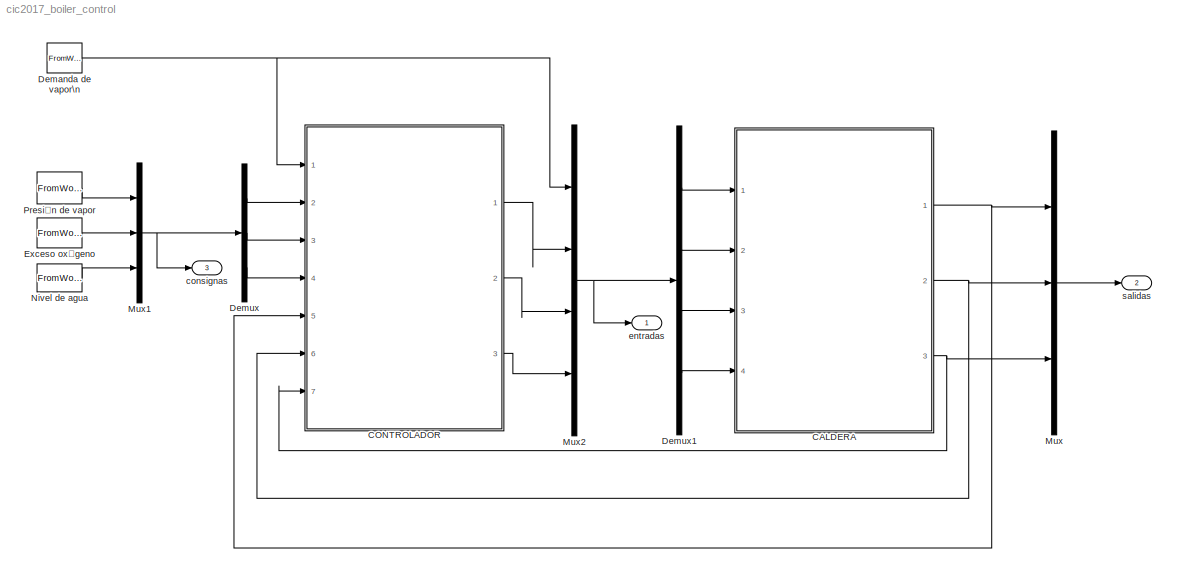
MODEL cic2017_boiler_control
KIND model
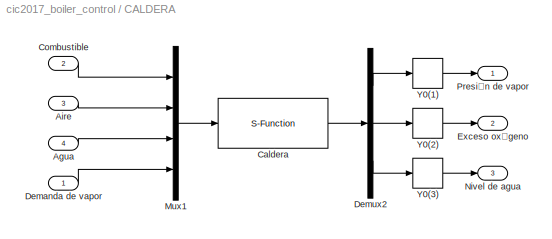
BLOCK [SubSystem] CALDERA
  Ports = [4, 3]
  RequestExecContextInheritance = off
  SID = 1
BLOCK [Inport] CALDERA/Agua
  IconDisplay = Port number
  Port = 4
  SID = 4
BLOCK [Inport] CALDERA/Aire
  IconDisplay = Port number
  Port = 3
  SID = 3
BLOCK [S-Function] CALDERA/Caldera
  EnableBusSupport = off
  FunctionName = cic2017_boiler
  Parameters = Y0,[U0 D0]
  Ports = [1, 1]
  SID = 27
BLOCK [Inport] CALDERA/Combustible
  IconDisplay = Port number
  Port = 2
  SID = 2
BLOCK [Inport] CALDERA/Demanda de vapor
  IconDisplay = Port number
  SID = 5
BLOCK [Demux] CALDERA/Demux2
  DisplayOption = bar
  Outputs = 3
  Ports = [1, 3]
  SID = 9
BLOCK [Outport] CALDERA/Exceso oxígeno
  IconDisplay = Port number
  Port = 2
  SID = 45
BLOCK [Mux] CALDERA/Mux1
  DisplayOption = bar
  Ports = [4, 1]
  SID = 15
BLOCK [Outport] CALDERA/Nivel de agua
  IconDisplay = Port number
  Port = 3
  SID = 46
BLOCK [Outport] CALDERA/Presión de vapor
  IconDisplay = Port number
  SID = 44
BLOCK [Memory] CALDERA/Y0(1)
  SID = 176
  X0 = Y0(1)
BLOCK [Memory] CALDERA/Y0(2)
  SID = 177
  X0 = Y0(2)
BLOCK [Memory] CALDERA/Y0(3)
  SID = 178
  X0 = Y0(3)
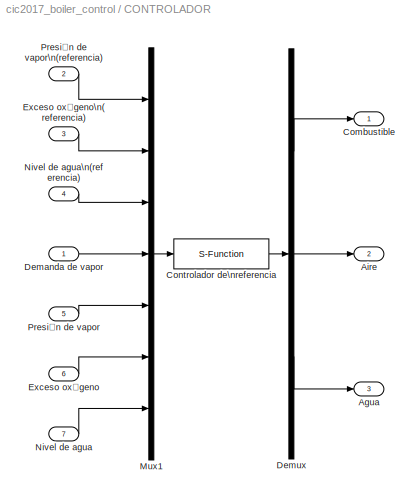
BLOCK [SubSystem] CONTROLADOR
  Ports = [7, 3]
  RequestExecContextInheritance = off
  SID = 121
BLOCK [Outport] CONTROLADOR/Agua
  IconDisplay = Port number
  Port = 3
  SID = 127
BLOCK [Outport] CONTROLADOR/Aire
  IconDisplay = Port number
  Port = 2
  SID = 125
BLOCK [Outport] CONTROLADOR/Combustible
  IconDisplay = Port number
  SID = 123
BLOCK [S-Function] CONTROLADOR/Controlador de\nreferencia
  EnableBusSupport = off
  FunctionName = cic2017_controller
  Ports = [1, 1]
  SID = 173
BLOCK [Inport] CONTROLADOR/Demanda de vapor
  IconDisplay = Port number
  SID = 128
BLOCK [Demux] CONTROLADOR/Demux
  DisplayOption = bar
  Outputs = 3
  Ports = [1, 3]
  SID = 175
BLOCK [Inport] CONTROLADOR/Exceso oxígeno
  IconDisplay = Port number
  Port = 6
  SID = 134
BLOCK [Inport] CONTROLADOR/Exceso oxígeno\n(referencia)
  IconDisplay = Port number
  Port = 3
  SID = 124
BLOCK [Mux] CONTROLADOR/Mux1
  DisplayOption = bar
  Inputs = 7
  Ports = [7, 1]
  SID = 174
BLOCK [Inport] CONTROLADOR/Nivel de agua
  IconDisplay = Port number
  Port = 7
  SID = 135
BLOCK [Inport] CONTROLADOR/Nivel de agua\n(referencia)
  IconDisplay = Port number
  Port = 4
  SID = 126
BLOCK [Inport] CONTROLADOR/Presión de vapor
  IconDisplay = Port number
  Port = 5
  SID = 133
BLOCK [Inport] CONTROLADOR/Presión de vapor\n(referencia)
  IconDisplay = Port number
  Port = 2
  SID = 122
BLOCK [FromWorkspace] Demanda de vapor\n
  SID = 120
  SampleTime = 0
  VariableName = D
  ZeroCross = on
BLOCK [Demux] Demux
  DisplayOption = bar
  Outputs = 3
  Ports = [1, 3]
  SID = 164
BLOCK [Demux] Demux1
  DisplayOption = bar
  Ports = [1, 4]
  SID = 166
BLOCK [FromWorkspace] Exceso oxígeno
  SID = 168
  SampleTime = 0
  VariableName = Yref{2}
  ZeroCross = on
BLOCK [Mux] Mux
  DisplayOption = bar
  Inputs = 3
  Ports = [3, 1]
  SID = 108
BLOCK [Mux] Mux1
  DisplayOption = bar
  Inputs = 3
  Ports = [3, 1]
  SID = 163
BLOCK [Mux] Mux2
  DisplayOption = bar
  Ports = [4, 1]
  SID = 165
BLOCK [FromWorkspace] Nivel de agua
  SID = 169
  SampleTime = 0
  VariableName = Yref{3}
  ZeroCross = on
BLOCK [FromWorkspace] Presión de vapor
  SID = 167
  SampleTime = 0
  VariableName = Yref{1}
  ZeroCross = on
BLOCK [Outport] consignas
  IconDisplay = Port number
  Port = 3
  SID = 115
BLOCK [Outport] entradas
  IconDisplay = Port number
  SID = 116
BLOCK [Outport] salidas
  IconDisplay = Port number
  Port = 2
  SID = 114
LINE CALDERA/Agua:1 -> CALDERA/Mux1:3
LINE CALDERA/Aire:1 -> CALDERA/Mux1:2
LINE CALDERA/Caldera:1 -> CALDERA/Demux2:1
LINE CALDERA/Combustible:1 -> CALDERA/Mux1:1
LINE CALDERA/Demanda de vapor:1 -> CALDERA/Mux1:4
LINE CALDERA/Demux2:1 -> CALDERA/Y0(1):1
LINE CALDERA/Demux2:2 -> CALDERA/Y0(2):1
LINE CALDERA/Demux2:3 -> CALDERA/Y0(3):1
LINE CALDERA/Mux1:1 -> CALDERA/Caldera:1
LINE CALDERA/Y0(1):1 -> CALDERA/Presión de vapor:1
LINE CALDERA/Y0(2):1 -> CALDERA/Exceso oxígeno:1
LINE CALDERA/Y0(3):1 -> CALDERA/Nivel de agua:1
NET CALDERA:1 -> CONTROLADOR:5, Mux:1
NET CALDERA:2 -> CONTROLADOR:6, Mux:2
NET CALDERA:3 -> CONTROLADOR:7, Mux:3
LINE CONTROLADOR/Controlador de\nreferencia:1 -> CONTROLADOR/Demux:1
LINE CONTROLADOR/Demanda de vapor:1 -> CONTROLADOR/Mux1:4
LINE CONTROLADOR/Demux:1 -> CONTROLADOR/Combustible:1
LINE CONTROLADOR/Demux:2 -> CONTROLADOR/Aire:1
LINE CONTROLADOR/Demux:3 -> CONTROLADOR/Agua:1
LINE CONTROLADOR/Exceso oxígeno:1 -> CONTROLADOR/Mux1:6
LINE CONTROLADOR/Exceso oxígeno\n(referencia):1 -> CONTROLADOR/Mux1:2
LINE CONTROLADOR/Mux1:1 -> CONTROLADOR/Controlador de\nreferencia:1
LINE CONTROLADOR/Nivel de agua:1 -> CONTROLADOR/Mux1:7
LINE CONTROLADOR/Nivel de agua\n(referencia):1 -> CONTROLADOR/Mux1:3
LINE CONTROLADOR/Presión de vapor:1 -> CONTROLADOR/Mux1:5
LINE CONTROLADOR/Presión de vapor\n(referencia):1 -> CONTROLADOR/Mux1:1
LINE CONTROLADOR:1 -> Mux2:2
LINE CONTROLADOR:2 -> Mux2:3
LINE CONTROLADOR:3 -> Mux2:4
NET Demanda de vapor\n:1 -> CONTROLADOR:1, Mux2:1
LINE Demux1:1 -> CALDERA:1
LINE Demux1:2 -> CALDERA:2
LINE Demux1:3 -> CALDERA:3
LINE Demux1:4 -> CALDERA:4
LINE Demux:1 -> CONTROLADOR:2
LINE Demux:2 -> CONTROLADOR:3
LINE Demux:3 -> CONTROLADOR:4
LINE Exceso oxígeno:1 -> Mux1:2
NET Mux1:1 -> Demux:1, consignas:1
NET Mux2:1 -> Demux1:1, entradas:1
LINE Mux:1 -> salidas:1
LINE Nivel de agua:1 -> Mux1:3
LINE Presión de vapor:1 -> Mux1:1
note: NET lines group one-source signal fan-out (src -> all destinations, sorted); 1:1 wires keep LINE
